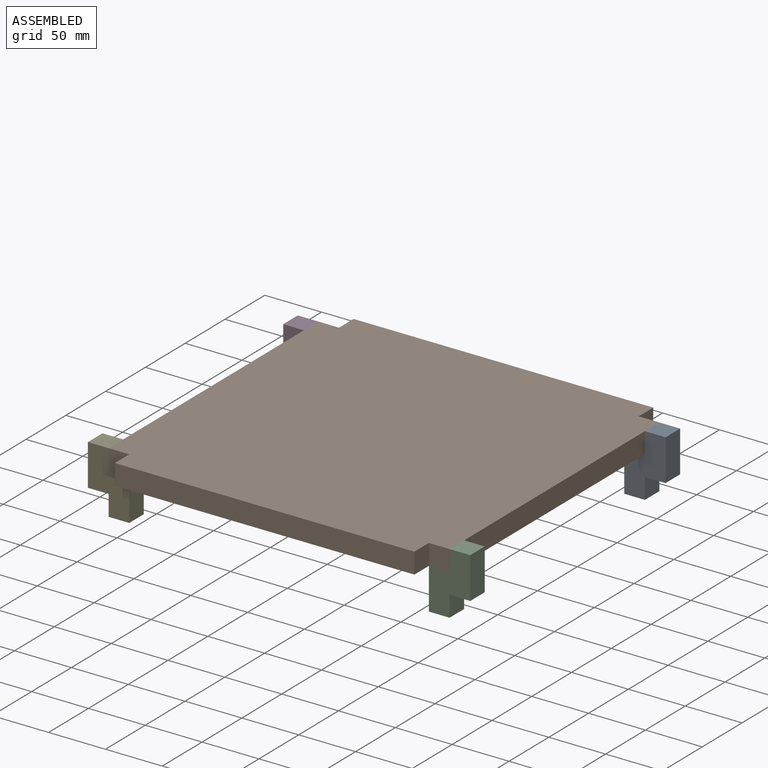
[diagram: assembled view]
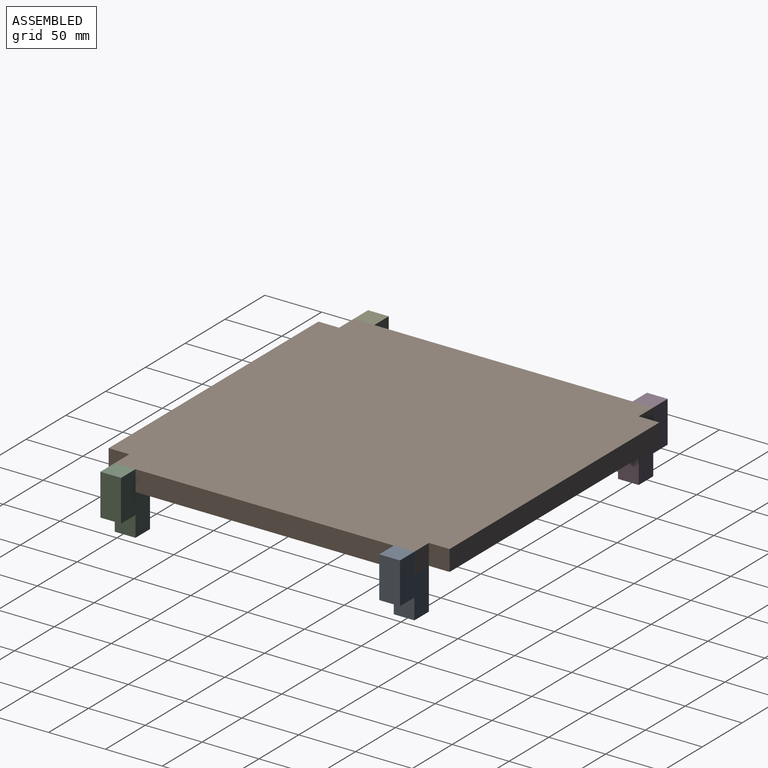
[diagram: assembled view, second angle]
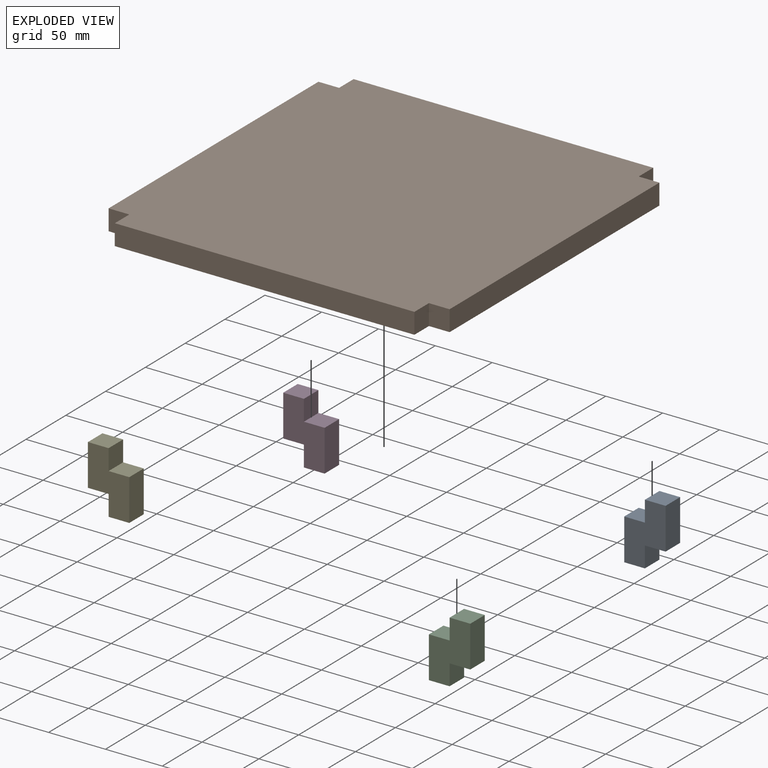
[diagram: exploded view]
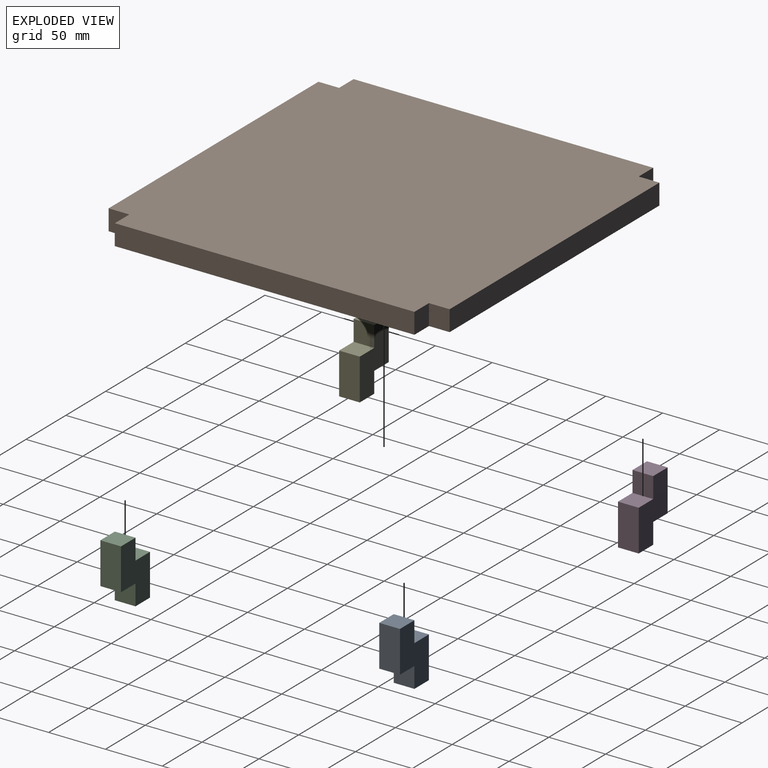
[diagram: exploded view, second angle]
ASSEMBLY  parts=5 mates=4
PART A: 10 faces, bbox 36.4x18.2x54.6 mm
  f0: plane 36.4x18.2mm, normal (-1,0,0), area 662.5mm2, adj f1,f7,f8,f9
  f1: plane 18.2x18.2mm, normal (0,0,-1), area 331.2mm2, adj f0,f2,f8,f9
  f2: plane 18.2x18.2mm, normal (1,0,0), area 331.2mm2, adj f1,f3,f8,f9
  f3: plane 18.2x18.2mm, normal (0,0,-1), area 331.2mm2, adj f2,f4,f8,f9
  f4: plane 36.4x18.2mm, normal (1,0,0), area 662.5mm2, adj f3,f5,f8,f9
  f5: plane 18.2x18.2mm, normal (0,0,1), area 331.2mm2, adj f4,f6,f8,f9
  f6: plane 18.2x18.2mm, normal (-1,0,0), area 331.2mm2, adj f5,f7,f8,f9
  f7: plane 18.2x18.2mm, normal (0,0,1), area 331.2mm2, adj f0,f6,f8,f9
  f8: plane 54.6x36.4mm, normal (0,-1,0), area 1325mm2, adj f0,f1,f2,f3,f4,f5,f6,f7
  f9: plane 54.6x36.4mm, normal (0,1,0), area 1325mm2, adj f0,f1,f2,f3,f4,f5,f6,f7
PART B: 14 faces, bbox 300x300x18.2 mm
  f0: plane 18.2x18.2mm, normal (1,0,0), area 331.2mm2, adj f1,f11,f12,f13
  f1: plane 18.2x18.2mm, normal (0,-1,0), area 331.2mm2, adj f0,f2,f12,f13
  f2: plane 263.6x18.2mm, normal (1,0,0), area 4797.5mm2, adj f1,f3,f12,f13
  f3: plane 18.2x18.2mm, normal (0,1,0), area 331.2mm2, adj f2,f4,f12,f13
  f4: plane 18.2x18.2mm, normal (1,0,0), area 331.2mm2, adj f3,f5,f12,f13
  f5: plane 263.6x18.2mm, normal (0,1,0), area 4797.5mm2, adj f4,f6,f12,f13
  f6: plane 18.2x18.2mm, normal (-1,0,0), area 331.2mm2, adj f5,f7,f12,f13
  f7: plane 18.2x18.2mm, normal (0,1,0), area 331.2mm2, adj f6,f8,f12,f13
  f8: plane 263.6x18.2mm, normal (-1,0,0), area 4797.5mm2, adj f7,f9,f12,f13
  f9: plane 18.2x18.2mm, normal (0,-1,0), area 331.2mm2, adj f8,f10,f12,f13
  f10: plane 18.2x18.2mm, normal (-1,0,0), area 331.2mm2, adj f9,f11,f12,f13
  f11: plane 263.6x18.2mm, normal (0,-1,0), area 4797.5mm2, adj f0,f10,f12,f13
  f12: plane 300x300mm, normal (0,0,1), area 88675mm2, adj f0,f1,f2,f3,f4,f5,f6,f7
  f13: plane 300x300mm, normal (0,0,-1), area 88675mm2, adj f0,f1,f2,f3,f4,f5,f6,f7
PART C: same geometry as A
PART D: same geometry as A
PART E: same geometry as A
PLACE A t=(150,131.8,-9.1)mm
PLACE B at identity fixed
PLACE C t=(150,-113.6,-9.1)mm
PLACE D rot(axis=(0,0,1),180deg) t=(-150,113.6,-9.1)mm
PLACE E rot(axis=(0,0,1),180deg) t=(-150,-131.8,-9.1)mm
MATE fastened E.f5 <-> B.f12  axis (0,0,1) through (-150,-131.8,18.2)mm
MATE fastened D.f5 <-> B.f12  axis (0,0,1) through (-150,131.8,18.2)mm
MATE fastened B.f12 <-> C.f5  axis (0,0,1) through (150,-131.8,18.2)mm
MATE fastened B.f12 <-> A.f5  axis (0,0,1) through (150,131.8,18.2)mm
